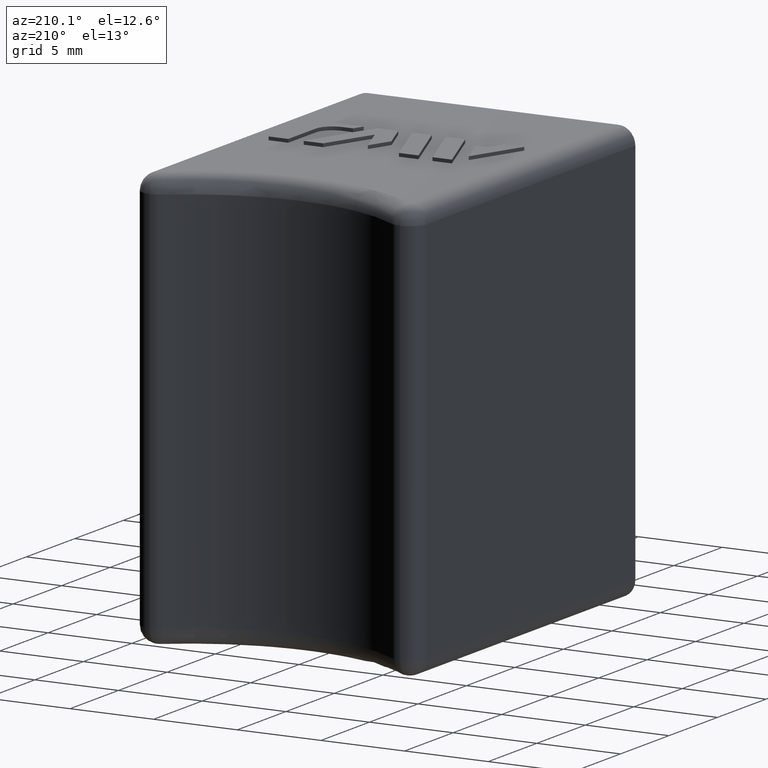
[diagram: clean part render]
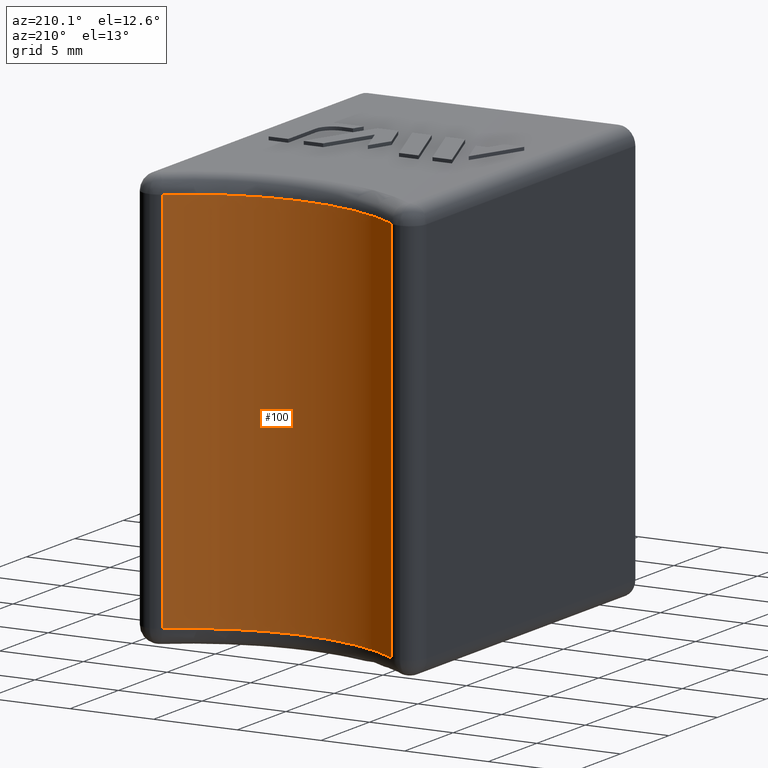
[diagram: same view with one face highlighted and labeled with its STEP entity id]
A machine part, auxiliary view. The second image highlights one B-rep face of the part: STEP entity #100.
In plain terms, the highlighted cylindrical surface (partial cylindrical patch) has radius 11.36 mm, axis along (0, 0, -1).
Its self-contained STEP definition (entity closure, byte-faithful):
#100 = ADVANCED_FACE( '', ( #284 ), #285, .F. );
#284 = FACE_OUTER_BOUND( '', #582, .T. );
#285 = CYLINDRICAL_SURFACE( '', #583, 11.3600000000000 );
#582 = EDGE_LOOP( '', ( #1090, #1091, #1092, #1093 ) );
#583 = AXIS2_PLACEMENT_3D( '', #1094, #1095, #1096 );
#1090 = ORIENTED_EDGE( '', *, *, #2040, .T. );
#1091 = ORIENTED_EDGE( '', *, *, #2047, .T. );
#1092 = ORIENTED_EDGE( '', *, *, #2064, .T. );
#1093 = ORIENTED_EDGE( '', *, *, #2065, .T. );
#1094 = CARTESIAN_POINT( '', ( 0.000000000000000, 31.3600000000000, -12.5000000000000 ) );
#1095 = DIRECTION( '', ( 0.000000000000000, 0.000000000000000, -1.00000000000000 ) );
#1096 = DIRECTION( '', ( 0.000000000000000, -1.00000000000000, 0.000000000000000 ) );
#2040 = EDGE_CURVE( '', #2495, #2497, #2499, .T. );
#2047 = EDGE_CURVE( '', #2497, #2506, #2508, .T. );
#2064 = EDGE_CURVE( '', #2506, #2537, #2538, .F. );
#2065 = EDGE_CURVE( '', #2537, #2495, #2539, .F. );
#2495 = VERTEX_POINT( '', #3166 );
#2497 = VERTEX_POINT( '', #3168 );
#2499 = CIRCLE( '', #3170, 11.3600000000000 );
#2506 = VERTEX_POINT( '', #3178 );
#2508 = LINE( '', #3180, #3181 );
#2537 = VERTEX_POINT( '', #3220 );
#2538 = CIRCLE( '', #3221, 11.3600000000000 );
#2539 = LINE( '', #3222, #3223 );
#3166 = CARTESIAN_POINT( '', ( 6.85017856149749, 22.2977346278317, -11.5000000000000 ) );
#3168 = CARTESIAN_POINT( '', ( -6.85017856149749, 22.2977346278317, -11.5000000000000 ) );
#3170 = AXIS2_PLACEMENT_3D( '', #3776, #3777, #3778 );
#3178 = CARTESIAN_POINT( '', ( -6.85017856149749, 22.2977346278317, 11.5000000000000 ) );
#3180 = CARTESIAN_POINT( '', ( -6.85017856149749, 22.2977346278317, -12.5000000000000 ) );
#3181 = VECTOR( '', #3795, 1000.00000000000 );
#3220 = CARTESIAN_POINT( '', ( 6.85017856149749, 22.2977346278317, 11.5000000000000 ) );
#3221 = AXIS2_PLACEMENT_3D( '', #3824, #3825, #3826 );
#3222 = CARTESIAN_POINT( '', ( 6.85017856149749, 22.2977346278317, -12.5000000000000 ) );
#3223 = VECTOR( '', #3827, 1000.00000000000 );
#3776 = CARTESIAN_POINT( '', ( 0.000000000000000, 31.3600000000000, -11.5000000000000 ) );
#3777 = DIRECTION( '', ( 0.000000000000000, 0.000000000000000, -1.00000000000000 ) );
#3778 = DIRECTION( '', ( -1.00000000000000, 0.000000000000000, 0.000000000000000 ) );
#3795 = DIRECTION( '', ( 0.000000000000000, 0.000000000000000, 1.00000000000000 ) );
#3824 = CARTESIAN_POINT( '', ( 0.000000000000000, 31.3600000000000, 11.5000000000000 ) );
#3825 = DIRECTION( '', ( 0.000000000000000, 0.000000000000000, -1.00000000000000 ) );
#3826 = DIRECTION( '', ( -1.00000000000000, 0.000000000000000, 0.000000000000000 ) );
#3827 = DIRECTION( '', ( 0.000000000000000, 0.000000000000000, 1.00000000000000 ) );